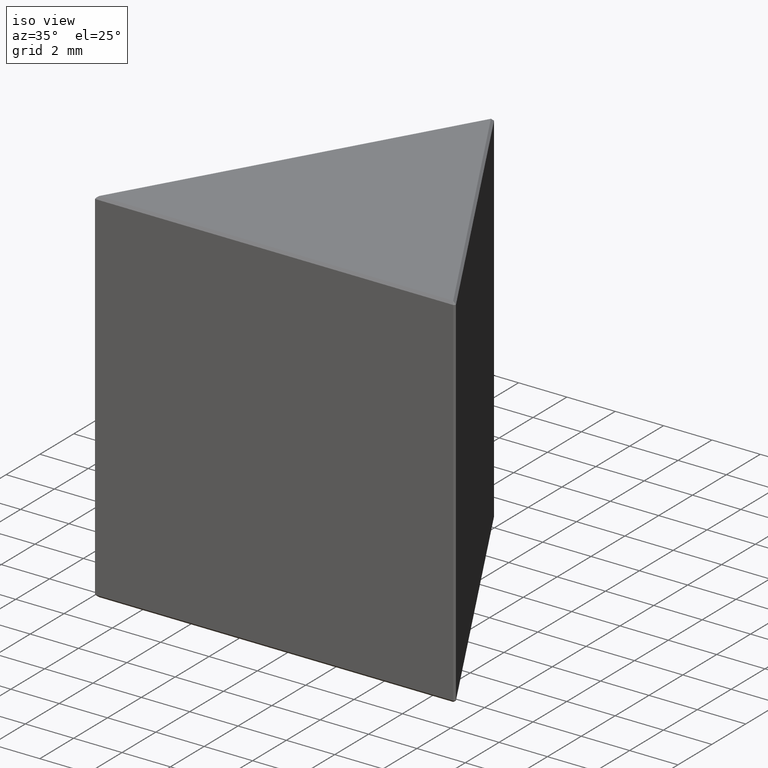
[diagram: clean part render]
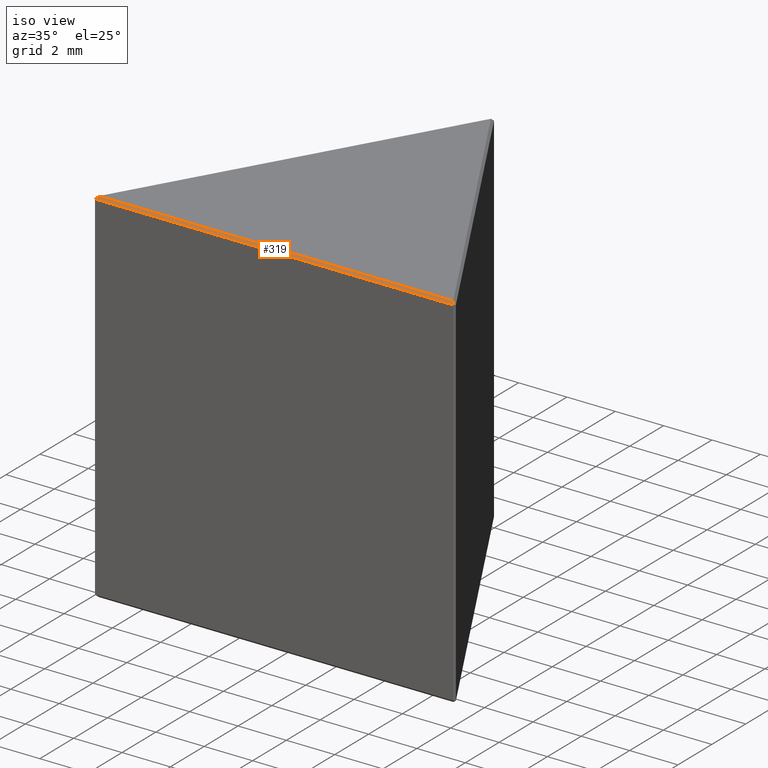
[diagram: same view with one face highlighted and labeled with its STEP entity id]
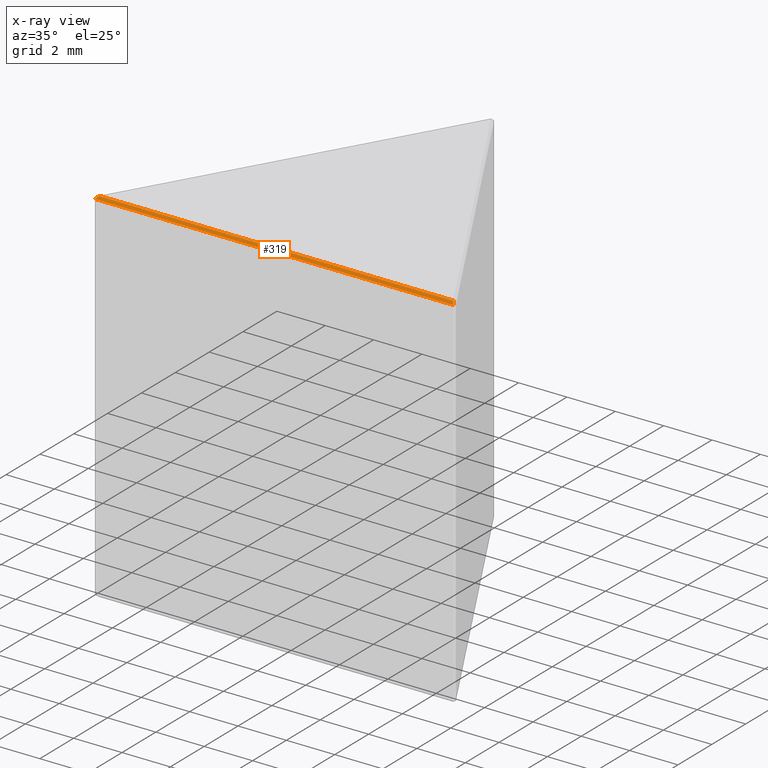
[diagram: x-ray of the same camera — body ghosted, the highlighted face saturated]
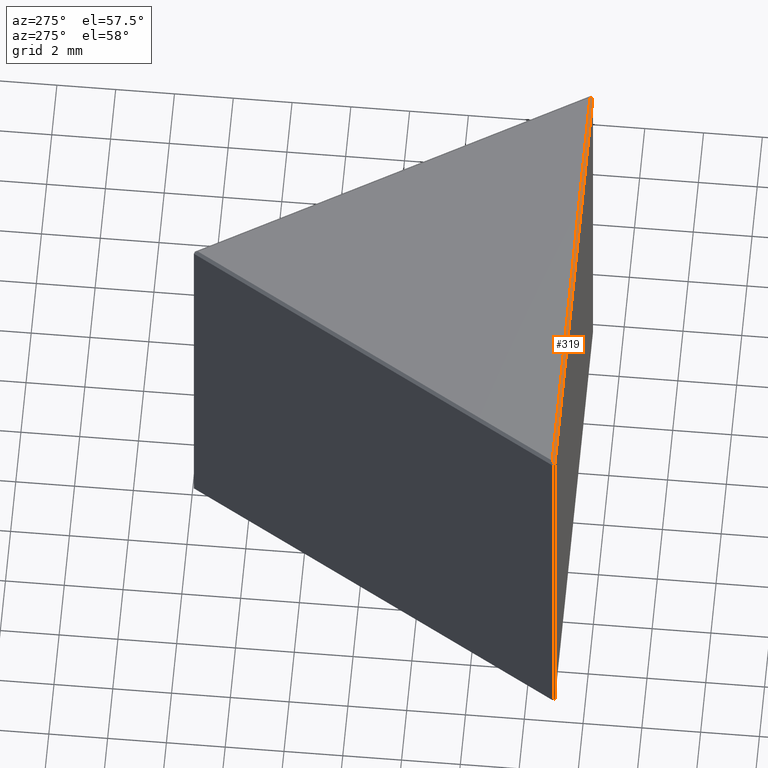
[diagram: same view with one face highlighted and labeled with its STEP entity id]
A machine part, iso view. The second image highlights one B-rep face of the part: STEP entity #319.
The next image is the same camera in x-ray: the body ghosted, the highlighted face saturated — about 0% of this face is hidden behind the body in this view.
A second angle (auxiliary view) of the same face is appended — the face is thin or edge-on in the first view.
In plain terms, the highlighted planar face has unit normal (0, -0.7071, 0.7071).
Its self-contained STEP definition (entity closure, byte-faithful):
#24 = VERTEX_POINT ( 'NONE', #264 ) ;
#31 = VERTEX_POINT ( 'NONE', #336 ) ;
#35 = EDGE_CURVE ( 'NONE', #312, #31, #488, .T. ) ;
#37 = VECTOR ( 'NONE', #415, 1000.000000000000000 ) ;
#59 = ORIENTED_EDGE ( 'NONE', *, *, #35, .F. ) ;
#75 = EDGE_CURVE ( 'NONE', #91, #24, #101, .T. ) ;
#81 = EDGE_LOOP ( 'NONE', ( #268, #59, #218, #117 ) ) ;
#88 = CARTESIAN_POINT ( 'NONE',  ( 7.399999999999995026, -12.99038105676657828, 14.90000000000000391 ) ) ;
#91 = VERTEX_POINT ( 'NONE', #223 ) ;
#101 = LINE ( 'NONE', #452, #241 ) ;
#117 = ORIENTED_EDGE ( 'NONE', *, *, #75, .F. ) ;
#119 = CARTESIAN_POINT ( 'NONE',  ( -7.405662432702593279, -12.96924857022605870, 14.92113248654052349 ) ) ;
#126 = DIRECTION ( 'NONE',  ( -1.000000000000000000, 0.000000000000000000, 0.000000000000000000 ) ) ;
#164 = LINE ( 'NONE', #119, #253 ) ;
#172 = CARTESIAN_POINT ( 'NONE',  ( 7.399999999999995026, -12.99038105676657828, 14.90000000000000391 ) ) ;
#175 = CARTESIAN_POINT ( 'NONE',  ( 0.000000000000000000, -12.89038105676658219, 15.00000000000000000 ) ) ;
#203 = LINE ( 'NONE', #172, #449 ) ;
#213 = PLANE ( 'NONE',  #388 ) ;
#218 = ORIENTED_EDGE ( 'NONE', *, *, #337, .F. ) ;
#223 = CARTESIAN_POINT ( 'NONE',  ( -7.326794919243119431, -12.89038105676658219, 15.00000000000000000 ) ) ;
#241 = VECTOR ( 'NONE', #262, 1000.000000000000000 ) ;
#253 = VECTOR ( 'NONE', #279, 1000.000000000000000 ) ;
#255 = DIRECTION ( 'NONE',  ( 0.4597008433809345318, -0.6279630301995721142, -0.6279630301995721142 ) ) ;
#262 = DIRECTION ( 'NONE',  ( 1.000000000000000000, 0.000000000000000000, 0.000000000000000000 ) ) ;
#264 = CARTESIAN_POINT ( 'NONE',  ( 7.326794919243120319, -12.89038105676658219, 15.00000000000000000 ) ) ;
#268 = ORIENTED_EDGE ( 'NONE', *, *, #288, .F. ) ;
#279 = DIRECTION ( 'NONE',  ( 0.5773502691896157391, 0.5773502691896308381, 0.5773502691896308381 ) ) ;
#288 = EDGE_CURVE ( 'NONE', #31, #91, #164, .T. ) ;
#312 = VERTEX_POINT ( 'NONE', #88 ) ;
#319 = ADVANCED_FACE ( 'NONE', ( #432 ), #213, .T. ) ;
#336 = CARTESIAN_POINT ( 'NONE',  ( -7.426794919243112858, -12.99038105676657828, 14.90000000000000391 ) ) ;
#337 = EDGE_CURVE ( 'NONE', #24, #312, #203, .T. ) ;
#365 = DIRECTION ( 'NONE',  ( 0.000000000000000000, -0.7071067811865475727, 0.7071067811865475727 ) ) ;
#388 = AXIS2_PLACEMENT_3D ( 'NONE', #175, #365, #126 ) ;
#415 = DIRECTION ( 'NONE',  ( -1.000000000000000000, 0.000000000000000000, 0.000000000000000000 ) ) ;
#432 = FACE_OUTER_BOUND ( 'NONE', #81, .T. ) ;
#449 = VECTOR ( 'NONE', #255, 1000.000000000000000 ) ;
#452 = CARTESIAN_POINT ( 'NONE',  ( 7.500000000000000000, -12.89038105676658219, 15.00000000000000000 ) ) ;
#455 = CARTESIAN_POINT ( 'NONE',  ( -7.500000000000000000, -12.99038105676657828, 14.90000000000000391 ) ) ;
#488 = LINE ( 'NONE', #455, #37 ) ;